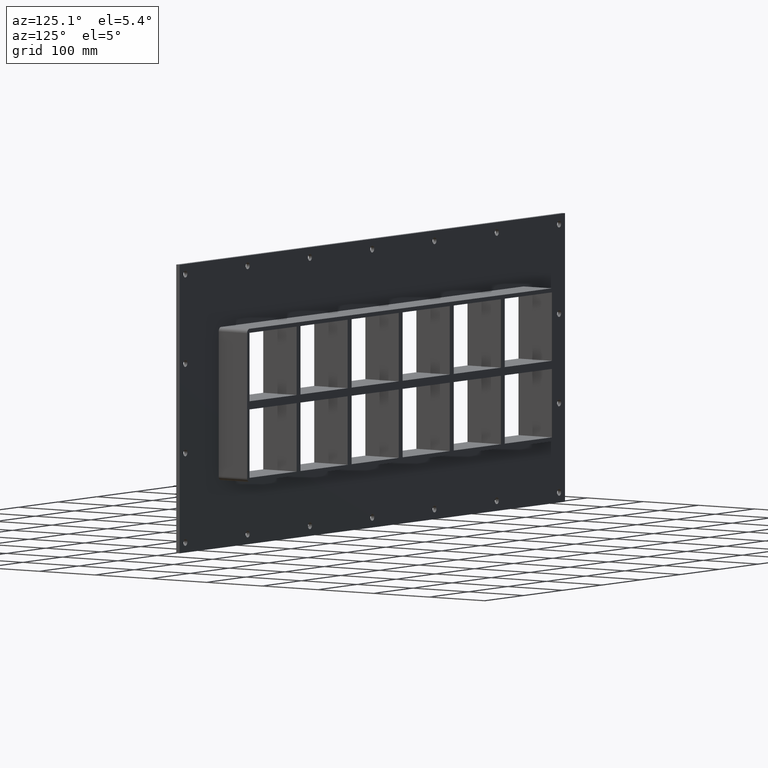
[diagram: clean part render]
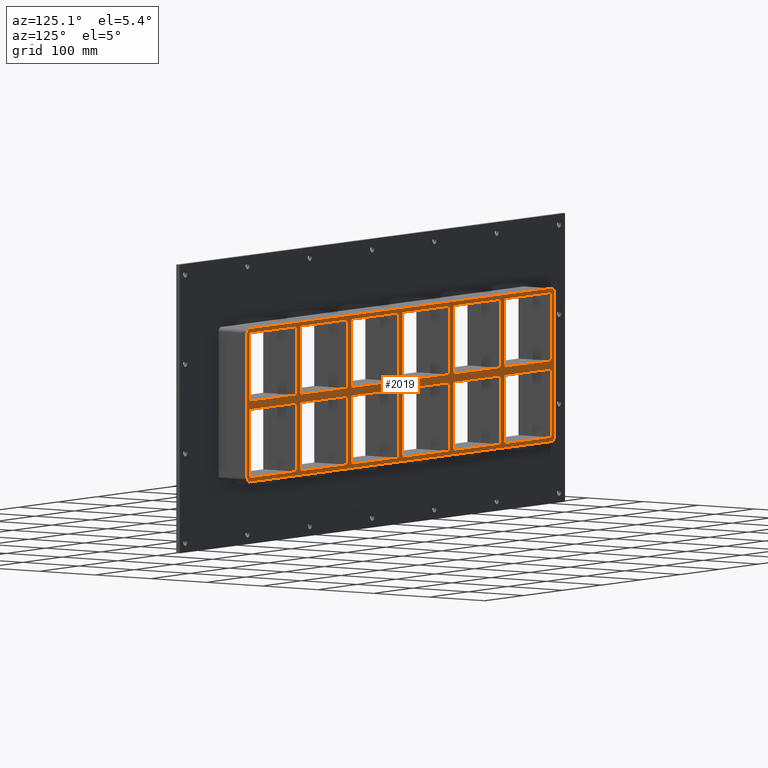
[diagram: same view with one face highlighted and labeled with its STEP entity id]
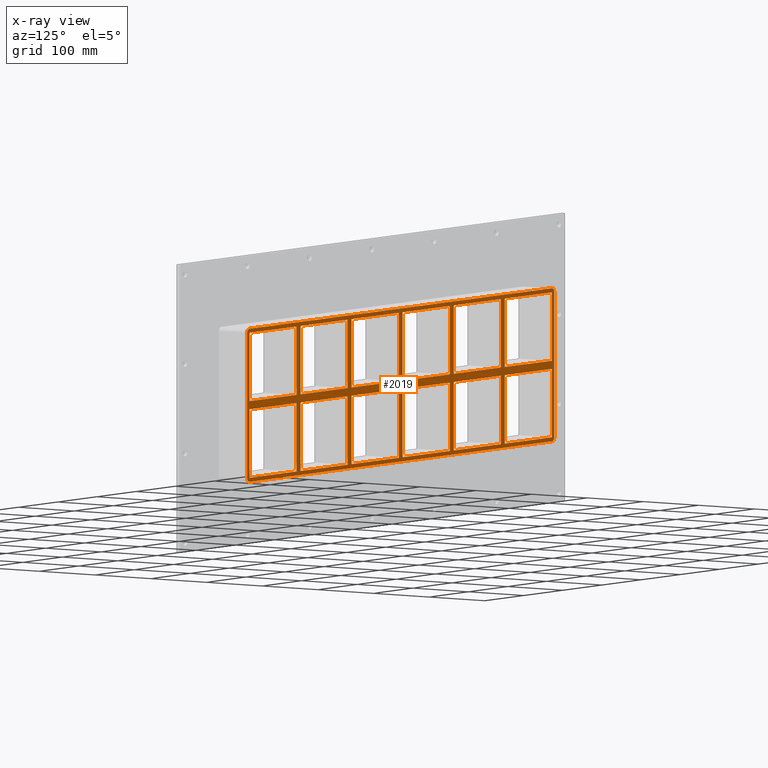
[diagram: x-ray of the same camera — body ghosted, the highlighted face saturated]
A machine part, auxiliary view. The second image highlights one B-rep face of the part: STEP entity #2019.
The next image is the same camera in x-ray: the body ghosted, the highlighted face saturated — about 0% of this face is hidden behind the body in this view.
In plain terms, the highlighted planar face has unit normal (0, 1, 0).
Its self-contained STEP definition (entity closure, byte-faithful):
#579=CARTESIAN_POINT('',(255.99999999999866,57.0,5.999999999999943));
#580=VERTEX_POINT('',#579);
#595=CARTESIAN_POINT('',(255.99999999999864,57.0,107.00000000000003));
#596=VERTEX_POINT('',#595);
#603=CARTESIAN_POINT('',(255.99999999999866,57.0,5.999999999999943));
#604=DIRECTION('',(0.0,0.0,1.0));
#605=VECTOR('',#604,101.00000000000009);
#606=LINE('',#603,#605);
#607=EDGE_CURVE('',#580,#596,#606,.T.);
#617=CARTESIAN_POINT('',(255.99999999999866,57.0,-6.000000000009376));
#618=VERTEX_POINT('',#617);
#627=CARTESIAN_POINT('',(255.99999999999869,57.0,-107.00000000000003));
#628=VERTEX_POINT('',#627);
#629=CARTESIAN_POINT('',(255.99999999999869,57.0,-107.00000000000003));
#630=DIRECTION('',(0.0,0.0,1.0));
#631=VECTOR('',#630,100.99999999999065);
#632=LINE('',#629,#631);
#633=EDGE_CURVE('',#628,#618,#632,.T.);
#657=CARTESIAN_POINT('',(265.99999999999642,57.0,5.999999999999943));
#658=VERTEX_POINT('',#657);
#667=CARTESIAN_POINT('',(265.99999999999642,57.0,107.00000000000003));
#668=VERTEX_POINT('',#667);
#669=CARTESIAN_POINT('',(265.99999999999642,57.0,107.00000000000003));
#670=DIRECTION('',(0.0,0.0,-1.0));
#671=VECTOR('',#670,101.00000000000009);
#672=LINE('',#669,#671);
#673=EDGE_CURVE('',#668,#658,#672,.T.);
#699=CARTESIAN_POINT('',(265.99999999999642,57.0,-6.000000000009358));
#700=VERTEX_POINT('',#699);
#715=CARTESIAN_POINT('',(265.99999999999642,57.0,-106.99999999998428));
#716=VERTEX_POINT('',#715);
#723=CARTESIAN_POINT('',(265.99999999999642,57.0,-6.000000000009351));
#724=DIRECTION('',(0.0,0.0,-1.0));
#725=VECTOR('',#724,100.99999999997493);
#726=LINE('',#723,#725);
#727=EDGE_CURVE('',#700,#716,#726,.T.);
#739=CARTESIAN_POINT('',(125.49999999999866,57.0,5.999999999999943));
#740=VERTEX_POINT('',#739);
#755=CARTESIAN_POINT('',(125.49999999999862,57.0,107.00000000000003));
#756=VERTEX_POINT('',#755);
#763=CARTESIAN_POINT('',(125.49999999999865,57.0,5.999999999999943));
#764=DIRECTION('',(0.0,0.0,1.0));
#765=VECTOR('',#764,101.00000000000009);
#766=LINE('',#763,#765);
#767=EDGE_CURVE('',#740,#756,#766,.T.);
#777=CARTESIAN_POINT('',(125.49999999999866,57.0,-6.000000000009411));
#778=VERTEX_POINT('',#777);
#787=CARTESIAN_POINT('',(125.49999999999869,57.0,-107.00000000000003));
#788=VERTEX_POINT('',#787);
#789=CARTESIAN_POINT('',(125.49999999999869,57.0,-107.00000000000003));
#790=DIRECTION('',(0.0,0.0,1.0));
#791=VECTOR('',#790,100.99999999999062);
#792=LINE('',#789,#791);
#793=EDGE_CURVE('',#788,#778,#792,.T.);
#817=CARTESIAN_POINT('',(135.49999999999642,57.0,5.999999999999943));
#818=VERTEX_POINT('',#817);
#827=CARTESIAN_POINT('',(135.49999999999642,57.0,107.00000000000003));
#828=VERTEX_POINT('',#827);
#829=CARTESIAN_POINT('',(135.49999999999642,57.0,107.00000000000003));
#830=DIRECTION('',(0.0,0.0,-1.0));
#831=VECTOR('',#830,101.00000000000009);
#832=LINE('',#829,#831);
#833=EDGE_CURVE('',#828,#818,#832,.T.);
#859=CARTESIAN_POINT('',(135.49999999999642,57.0,-6.000000000009411));
#860=VERTEX_POINT('',#859);
#875=CARTESIAN_POINT('',(135.49999999999642,57.0,-106.99999999998428));
#876=VERTEX_POINT('',#875);
#883=CARTESIAN_POINT('',(135.49999999999642,57.0,-6.000000000009408));
#884=DIRECTION('',(0.0,0.0,-1.0));
#885=VECTOR('',#884,100.99999999997488);
#886=LINE('',#883,#885);
#887=EDGE_CURVE('',#860,#876,#886,.T.);
#899=CARTESIAN_POINT('',(-5.000000000001387,57.0,5.999999999999943));
#900=VERTEX_POINT('',#899);
#915=CARTESIAN_POINT('',(-5.000000000001421,57.0,107.00000000000003));
#916=VERTEX_POINT('',#915);
#923=CARTESIAN_POINT('',(-5.000000000001387,57.0,5.999999999999943));
#924=DIRECTION('',(0.0,0.0,1.0));
#925=VECTOR('',#924,101.00000000000009);
#926=LINE('',#923,#925);
#927=EDGE_CURVE('',#900,#916,#926,.T.);
#937=CARTESIAN_POINT('',(-5.000000000001384,57.0,-6.000000000009464));
#938=VERTEX_POINT('',#937);
#947=CARTESIAN_POINT('',(-5.00000000000135,57.0,-107.00000000000003));
#948=VERTEX_POINT('',#947);
#949=CARTESIAN_POINT('',(-5.00000000000135,57.0,-107.00000000000003));
#950=DIRECTION('',(0.0,0.0,1.0));
#951=VECTOR('',#950,100.99999999999056);
#952=LINE('',#949,#951);
#953=EDGE_CURVE('',#948,#938,#952,.T.);
#977=CARTESIAN_POINT('',(4.999999999996376,57.0,5.999999999999943));
#978=VERTEX_POINT('',#977);
#987=CARTESIAN_POINT('',(4.999999999996376,57.0,107.00000000000003));
#988=VERTEX_POINT('',#987);
#989=CARTESIAN_POINT('',(4.999999999996376,57.0,107.00000000000003));
#990=DIRECTION('',(0.0,0.0,-1.0));
#991=VECTOR('',#990,101.00000000000009);
#992=LINE('',#989,#991);
#993=EDGE_CURVE('',#988,#978,#992,.T.);
#1019=CARTESIAN_POINT('',(4.999999999996376,57.0,-6.000000000009464));
#1020=VERTEX_POINT('',#1019);
#1035=CARTESIAN_POINT('',(4.999999999996376,57.0,-106.99999999998428));
#1036=VERTEX_POINT('',#1035);
#1043=CARTESIAN_POINT('',(4.999999999996376,57.0,-6.000000000009464));
#1044=DIRECTION('',(0.0,0.0,-1.0));
#1045=VECTOR('',#1044,100.99999999997482);
#1046=LINE('',#1043,#1045);
#1047=EDGE_CURVE('',#1020,#1036,#1046,.T.);
#1059=CARTESIAN_POINT('',(-135.50000000000139,57.0,5.999999999999943));
#1060=VERTEX_POINT('',#1059);
#1075=CARTESIAN_POINT('',(-135.50000000000142,57.0,107.00000000000003));
#1076=VERTEX_POINT('',#1075);
#1083=CARTESIAN_POINT('',(-135.50000000000139,57.0,5.999999999999943));
#1084=DIRECTION('',(0.0,0.0,1.0));
#1085=VECTOR('',#1084,101.00000000000009);
#1086=LINE('',#1083,#1085);
#1087=EDGE_CURVE('',#1060,#1076,#1086,.T.);
#1097=CARTESIAN_POINT('',(-135.50000000000139,57.0,-6.000000000009518));
#1098=VERTEX_POINT('',#1097);
#1107=CARTESIAN_POINT('',(-135.50000000000136,57.0,-107.00000000000003));
#1108=VERTEX_POINT('',#1107);
#1109=CARTESIAN_POINT('',(-135.50000000000136,57.0,-107.00000000000003));
#1110=DIRECTION('',(0.0,0.0,1.0));
#1111=VECTOR('',#1110,100.99999999999051);
#1112=LINE('',#1109,#1111);
#1113=EDGE_CURVE('',#1108,#1098,#1112,.T.);
#1137=CARTESIAN_POINT('',(-125.50000000000364,57.0,5.999999999999943));
#1138=VERTEX_POINT('',#1137);
#1147=CARTESIAN_POINT('',(-125.50000000000364,57.0,107.00000000000003));
#1148=VERTEX_POINT('',#1147);
#1149=CARTESIAN_POINT('',(-125.50000000000364,57.0,107.00000000000003));
#1150=DIRECTION('',(0.0,0.0,-1.0));
#1151=VECTOR('',#1150,101.00000000000009);
#1152=LINE('',#1149,#1151);
#1153=EDGE_CURVE('',#1148,#1138,#1152,.T.);
#1179=CARTESIAN_POINT('',(-125.50000000000364,57.0,-6.000000000009518));
#1180=VERTEX_POINT('',#1179);
#1195=CARTESIAN_POINT('',(-125.50000000000364,57.0,-106.99999999998428));
#1196=VERTEX_POINT('',#1195);
#1203=CARTESIAN_POINT('',(-125.50000000000364,57.0,-6.000000000009521));
#1204=DIRECTION('',(0.0,0.0,-1.0));
#1205=VECTOR('',#1204,100.99999999997476);
#1206=LINE('',#1203,#1205);
#1207=EDGE_CURVE('',#1180,#1196,#1206,.T.);
#1218=CARTESIAN_POINT('',(-256.00000000000364,57.0,-106.99999999998428));
#1219=VERTEX_POINT('',#1218);
#1220=CARTESIAN_POINT('',(-256.00000000000364,57.0,-107.00000000000003));
#1221=DIRECTION('',(1.0,0.0,0.0));
#1222=VECTOR('',#1221,120.50000000000227);
#1223=LINE('',#1220,#1222);
#1224=EDGE_CURVE('',#1219,#1108,#1223,.T.);
#1249=CARTESIAN_POINT('',(-125.50000000000364,57.0,-107.00000000000003));
#1250=DIRECTION('',(1.0,0.0,0.0));
#1251=VECTOR('',#1250,120.5000000000023);
#1252=LINE('',#1249,#1251);
#1253=EDGE_CURVE('',#1196,#948,#1252,.T.);
#1271=CARTESIAN_POINT('',(4.99999999999639,57.0,-107.00000000000003));
#1272=DIRECTION('',(1.0,0.0,0.0));
#1273=VECTOR('',#1272,120.5000000000023);
#1274=LINE('',#1271,#1273);
#1275=EDGE_CURVE('',#1036,#788,#1274,.T.);
#1293=CARTESIAN_POINT('',(135.49999999999642,57.0,-107.00000000000003));
#1294=DIRECTION('',(1.0,0.0,0.0));
#1295=VECTOR('',#1294,120.50000000000227);
#1296=LINE('',#1293,#1295);
#1297=EDGE_CURVE('',#876,#628,#1296,.T.);
#1323=CARTESIAN_POINT('',(386.50000000000006,57.0,-107.00000000000003));
#1324=VERTEX_POINT('',#1323);
#1331=CARTESIAN_POINT('',(265.99999999999642,57.0,-107.00000000000003));
#1332=DIRECTION('',(1.0,0.0,0.0));
#1333=VECTOR('',#1332,120.50000000000364);
#1334=LINE('',#1331,#1333);
#1335=EDGE_CURVE('',#716,#1324,#1334,.T.);
#1657=CARTESIAN_POINT('',(386.49999999999636,57.0,-6.000000000009322));
#1658=VERTEX_POINT('',#1657);
#1659=CARTESIAN_POINT('',(386.49999999999636,57.0,-6.000000000009322));
#1660=DIRECTION('',(-1.0,0.0,0.0));
#1661=VECTOR('',#1660,120.49999999999994);
#1662=LINE('',#1659,#1661);
#1663=EDGE_CURVE('',#1658,#700,#1662,.T.);
#1682=CARTESIAN_POINT('',(-256.00000000000364,57.0,-6.000000000009559));
#1683=VERTEX_POINT('',#1682);
#1690=CARTESIAN_POINT('',(-135.50000000000136,57.0,-6.000000000009514));
#1691=DIRECTION('',(-1.0,0.0,0.0));
#1692=VECTOR('',#1691,120.50000000000227);
#1693=LINE('',#1690,#1692);
#1694=EDGE_CURVE('',#1098,#1683,#1693,.T.);
#1707=CARTESIAN_POINT('',(-5.000000000001364,57.0,-6.000000000009466));
#1708=DIRECTION('',(-1.0,0.0,0.0));
#1709=VECTOR('',#1708,120.50000000000227);
#1710=LINE('',#1707,#1709);
#1711=EDGE_CURVE('',#938,#1180,#1710,.T.);
#1724=CARTESIAN_POINT('',(125.49999999999864,57.0,-6.000000000009418));
#1725=DIRECTION('',(-1.0,0.0,0.0));
#1726=VECTOR('',#1725,120.50000000000227);
#1727=LINE('',#1724,#1726);
#1728=EDGE_CURVE('',#778,#1020,#1727,.T.);
#1733=CARTESIAN_POINT('',(-6.975407E-014,57.0,0.0));
#1734=DIRECTION('',(0.0,1.0,0.0));
#1735=DIRECTION('',(0.0,0.0,1.0));
#1736=AXIS2_PLACEMENT_3D('',#1733,#1734,#1735);
#1737=PLANE('',#1736);
#1738=CARTESIAN_POINT('',(386.50000000000006,57.0,-113.0));
#1739=VERTEX_POINT('',#1738);
#1740=CARTESIAN_POINT('',(392.5,57.0,-107.0));
#1741=VERTEX_POINT('',#1740);
#1742=CARTESIAN_POINT('',(386.50000000000006,57.0,-107.0));
#1743=DIRECTION('',(0.0,-1.0,0.0));
#1744=DIRECTION('',(0.707106781186543,0.0,-0.707106781186552));
#1745=AXIS2_PLACEMENT_3D('',#1742,#1743,#1744);
#1746=CIRCLE('',#1745,6.000000000000001);
#1747=EDGE_CURVE('',#1739,#1741,#1746,.T.);
#1748=ORIENTED_EDGE('',*,*,#1747,.F.);
#1749=CARTESIAN_POINT('',(-386.50000000000006,57.0,-113.0));
#1750=VERTEX_POINT('',#1749);
#1751=CARTESIAN_POINT('',(386.50000000000006,57.0,-113.0));
#1752=DIRECTION('',(-1.0,0.0,0.0));
#1753=VECTOR('',#1752,773.0);
#1754=LINE('',#1751,#1753);
#1755=EDGE_CURVE('',#1739,#1750,#1754,.T.);
#1756=ORIENTED_EDGE('',*,*,#1755,.T.);
#1757=CARTESIAN_POINT('',(-392.50000000000011,57.0,-107.0));
#1758=VERTEX_POINT('',#1757);
#1759=CARTESIAN_POINT('',(-386.50000000000006,57.0,-107.0));
#1760=DIRECTION('',(0.0,-1.0,0.0));
#1761=DIRECTION('',(-0.707106781186552,0.0,-0.707106781186543));
#1762=AXIS2_PLACEMENT_3D('',#1759,#1760,#1761);
#1763=CIRCLE('',#1762,6.0);
#1764=EDGE_CURVE('',#1758,#1750,#1763,.T.);
#1765=ORIENTED_EDGE('',*,*,#1764,.F.);
#1766=CARTESIAN_POINT('',(-392.50000000000011,57.0,107.0));
#1767=VERTEX_POINT('',#1766);
#1768=CARTESIAN_POINT('',(-392.50000000000011,57.0,-106.99999999999999));
#1769=DIRECTION('',(0.0,0.0,1.0));
#1770=VECTOR('',#1769,214.0);
#1771=LINE('',#1768,#1770);
#1772=EDGE_CURVE('',#1758,#1767,#1771,.T.);
#1773=ORIENTED_EDGE('',*,*,#1772,.T.);
#1774=CARTESIAN_POINT('',(-386.50000000000023,57.0,113.0));
#1775=VERTEX_POINT('',#1774);
#1776=CARTESIAN_POINT('',(-386.50000000000023,57.0,107.0));
#1777=DIRECTION('',(0.0,-1.0,0.0));
#1778=DIRECTION('',(-0.707106781186543,0.0,0.707106781186552));
#1779=AXIS2_PLACEMENT_3D('',#1776,#1777,#1778);
#1780=CIRCLE('',#1779,6.000000000000001);
#1781=EDGE_CURVE('',#1775,#1767,#1780,.T.);
#1782=ORIENTED_EDGE('',*,*,#1781,.F.);
#1783=CARTESIAN_POINT('',(386.49999999999989,57.0,113.0));
#1784=VERTEX_POINT('',#1783);
#1785=CARTESIAN_POINT('',(-386.50000000000017,57.0,113.0));
#1786=DIRECTION('',(1.0,0.0,0.0));
#1787=VECTOR('',#1786,773.0);
#1788=LINE('',#1785,#1787);
#1789=EDGE_CURVE('',#1775,#1784,#1788,.T.);
#1790=ORIENTED_EDGE('',*,*,#1789,.T.);
#1791=CARTESIAN_POINT('',(392.5,57.0,107.00000000000001));
#1792=VERTEX_POINT('',#1791);
#1793=CARTESIAN_POINT('',(386.49999999999989,57.0,107.00000000000001));
#1794=DIRECTION('',(0.0,-1.0,0.0));
#1795=DIRECTION('',(0.707106781186554,0.0,0.707106781186541));
#1796=AXIS2_PLACEMENT_3D('',#1793,#1794,#1795);
#1797=CIRCLE('',#1796,6.0);
#1798=EDGE_CURVE('',#1792,#1784,#1797,.T.);
#1799=ORIENTED_EDGE('',*,*,#1798,.F.);
#1800=CARTESIAN_POINT('',(392.5,57.0,107.0));
#1801=DIRECTION('',(0.0,0.0,-1.0));
#1802=VECTOR('',#1801,214.0);
#1803=LINE('',#1800,#1802);
#1804=EDGE_CURVE('',#1792,#1741,#1803,.T.);
#1805=ORIENTED_EDGE('',*,*,#1804,.T.);
#1806=EDGE_LOOP('',(#1748,#1756,#1765,#1773,#1782,#1790,#1799,#1805));
#1807=FACE_OUTER_BOUND('',#1806,.T.);
#1808=ORIENTED_EDGE('',*,*,#1335,.T.);
#1809=CARTESIAN_POINT('',(386.50000000000006,57.0,-107.00000000000004));
#1810=DIRECTION('',(0.0,0.0,1.0));
#1811=VECTOR('',#1810,100.99999999999072);
#1812=LINE('',#1809,#1811);
#1813=EDGE_CURVE('',#1324,#1658,#1812,.T.);
#1814=ORIENTED_EDGE('',*,*,#1813,.T.);
#1815=ORIENTED_EDGE('',*,*,#1663,.T.);
#1816=ORIENTED_EDGE('',*,*,#727,.T.);
#1817=EDGE_LOOP('',(#1808,#1814,#1815,#1816));
#1818=FACE_BOUND('',#1817,.T.);
#1819=CARTESIAN_POINT('',(386.50000000000006,57.0,5.999999999999943));
#1820=VERTEX_POINT('',#1819);
#1821=CARTESIAN_POINT('',(265.99999999999636,57.0,5.999999999999943));
#1822=DIRECTION('',(1.0,0.0,0.0));
#1823=VECTOR('',#1822,120.50000000000364);
#1824=LINE('',#1821,#1823);
#1825=EDGE_CURVE('',#658,#1820,#1824,.T.);
#1826=ORIENTED_EDGE('',*,*,#1825,.T.);
#1827=CARTESIAN_POINT('',(386.50000000000006,57.0,107.00000000000003));
#1828=VERTEX_POINT('',#1827);
#1829=CARTESIAN_POINT('',(386.50000000000006,57.0,5.999999999999943));
#1830=DIRECTION('',(0.0,0.0,1.0));
#1831=VECTOR('',#1830,101.00000000000009);
#1832=LINE('',#1829,#1831);
#1833=EDGE_CURVE('',#1820,#1828,#1832,.T.);
#1834=ORIENTED_EDGE('',*,*,#1833,.T.);
#1835=CARTESIAN_POINT('',(386.50000000000006,57.0,107.00000000000003));
#1836=DIRECTION('',(-1.0,0.0,0.0));
#1837=VECTOR('',#1836,120.50000000000364);
#1838=LINE('',#1835,#1837);
#1839=EDGE_CURVE('',#1828,#668,#1838,.T.);
#1840=ORIENTED_EDGE('',*,*,#1839,.T.);
#1841=ORIENTED_EDGE('',*,*,#673,.T.);
#1842=EDGE_LOOP('',(#1826,#1834,#1840,#1841));
#1843=FACE_BOUND('',#1842,.T.);
#1844=ORIENTED_EDGE('',*,*,#633,.T.);
#1845=CARTESIAN_POINT('',(255.99999999999866,57.0,-6.00000000000937));
#1846=DIRECTION('',(-1.0,0.0,0.0));
#1847=VECTOR('',#1846,120.50000000000225);
#1848=LINE('',#1845,#1847);
#1849=EDGE_CURVE('',#618,#860,#1848,.T.);
#1850=ORIENTED_EDGE('',*,*,#1849,.T.);
#1851=ORIENTED_EDGE('',*,*,#887,.T.);
#1852=ORIENTED_EDGE('',*,*,#1297,.T.);
#1853=EDGE_LOOP('',(#1844,#1850,#1851,#1852));
#1854=FACE_BOUND('',#1853,.T.);
#1855=ORIENTED_EDGE('',*,*,#607,.T.);
#1856=CARTESIAN_POINT('',(255.99999999999864,57.0,107.00000000000003));
#1857=DIRECTION('',(-1.0,0.0,0.0));
#1858=VECTOR('',#1857,120.50000000000222);
#1859=LINE('',#1856,#1858);
#1860=EDGE_CURVE('',#596,#828,#1859,.T.);
#1861=ORIENTED_EDGE('',*,*,#1860,.T.);
#1862=ORIENTED_EDGE('',*,*,#833,.T.);
#1863=CARTESIAN_POINT('',(135.49999999999636,57.0,5.999999999999943));
#1864=DIRECTION('',(1.0,0.0,0.0));
#1865=VECTOR('',#1864,120.50000000000227);
#1866=LINE('',#1863,#1865);
#1867=EDGE_CURVE('',#818,#580,#1866,.T.);
#1868=ORIENTED_EDGE('',*,*,#1867,.T.);
#1869=EDGE_LOOP('',(#1855,#1861,#1862,#1868));
#1870=FACE_BOUND('',#1869,.T.);
#1871=ORIENTED_EDGE('',*,*,#793,.T.);
#1872=ORIENTED_EDGE('',*,*,#1728,.T.);
#1873=ORIENTED_EDGE('',*,*,#1047,.T.);
#1874=ORIENTED_EDGE('',*,*,#1275,.T.);
#1875=EDGE_LOOP('',(#1871,#1872,#1873,#1874));
#1876=FACE_BOUND('',#1875,.T.);
#1877=ORIENTED_EDGE('',*,*,#767,.T.);
#1878=CARTESIAN_POINT('',(125.49999999999864,57.0,107.00000000000003));
#1879=DIRECTION('',(-1.0,0.0,0.0));
#1880=VECTOR('',#1879,120.50000000000225);
#1881=LINE('',#1878,#1880);
#1882=EDGE_CURVE('',#756,#988,#1881,.T.);
#1883=ORIENTED_EDGE('',*,*,#1882,.T.);
#1884=ORIENTED_EDGE('',*,*,#993,.T.);
#1885=CARTESIAN_POINT('',(4.999999999996362,57.0,5.999999999999943));
#1886=DIRECTION('',(1.0,0.0,0.0));
#1887=VECTOR('',#1886,120.50000000000233);
#1888=LINE('',#1885,#1887);
#1889=EDGE_CURVE('',#978,#740,#1888,.T.);
#1890=ORIENTED_EDGE('',*,*,#1889,.T.);
#1891=EDGE_LOOP('',(#1877,#1883,#1884,#1890));
#1892=FACE_BOUND('',#1891,.T.);
#1893=ORIENTED_EDGE('',*,*,#953,.T.);
#1894=ORIENTED_EDGE('',*,*,#1711,.T.);
#1895=ORIENTED_EDGE('',*,*,#1207,.T.);
#1896=ORIENTED_EDGE('',*,*,#1253,.T.);
#1897=EDGE_LOOP('',(#1893,#1894,#1895,#1896));
#1898=FACE_BOUND('',#1897,.T.);
#1899=ORIENTED_EDGE('',*,*,#927,.T.);
#1900=CARTESIAN_POINT('',(-5.000000000001421,57.0,107.00000000000003));
#1901=DIRECTION('',(-1.0,0.0,0.0));
#1902=VECTOR('',#1901,120.5000000000022);
#1903=LINE('',#1900,#1902);
#1904=EDGE_CURVE('',#916,#1148,#1903,.T.);
#1905=ORIENTED_EDGE('',*,*,#1904,.T.);
#1906=ORIENTED_EDGE('',*,*,#1153,.T.);
#1907=CARTESIAN_POINT('',(-125.50000000000364,57.0,5.999999999999943));
#1908=DIRECTION('',(1.0,0.0,0.0));
#1909=VECTOR('',#1908,120.50000000000222);
#1910=LINE('',#1907,#1909);
#1911=EDGE_CURVE('',#1138,#900,#1910,.T.);
#1912=ORIENTED_EDGE('',*,*,#1911,.T.);
#1913=EDGE_LOOP('',(#1899,#1905,#1906,#1912));
#1914=FACE_BOUND('',#1913,.T.);
#1915=ORIENTED_EDGE('',*,*,#1113,.T.);
#1916=ORIENTED_EDGE('',*,*,#1694,.T.);
#1917=CARTESIAN_POINT('',(-256.00000000000364,57.0,-6.00000000000955));
#1918=DIRECTION('',(0.0,0.0,-1.0));
#1919=VECTOR('',#1918,100.99999999997473);
#1920=LINE('',#1917,#1919);
#1921=EDGE_CURVE('',#1683,#1219,#1920,.T.);
#1922=ORIENTED_EDGE('',*,*,#1921,.T.);
#1923=ORIENTED_EDGE('',*,*,#1224,.T.);
#1924=EDGE_LOOP('',(#1915,#1916,#1922,#1923));
#1925=FACE_BOUND('',#1924,.T.);
#1926=CARTESIAN_POINT('',(-386.49999999999977,57.0,5.999999999999943));
#1927=VERTEX_POINT('',#1926);
#1928=CARTESIAN_POINT('',(-266.00000000000142,57.0,5.999999999999943));
#1929=VERTEX_POINT('',#1928);
#1930=CARTESIAN_POINT('',(-386.49999999999977,57.0,5.999999999999943));
#1931=DIRECTION('',(1.0,0.0,0.0));
#1932=VECTOR('',#1931,120.49999999999841);
#1933=LINE('',#1930,#1932);
#1934=EDGE_CURVE('',#1927,#1929,#1933,.T.);
#1935=ORIENTED_EDGE('',*,*,#1934,.T.);
#1936=CARTESIAN_POINT('',(-266.00000000000142,57.0,107.00000000000003));
#1937=VERTEX_POINT('',#1936);
#1938=CARTESIAN_POINT('',(-266.00000000000142,57.0,5.999999999999943));
#1939=DIRECTION('',(0.0,0.0,1.0));
#1940=VECTOR('',#1939,101.00000000000009);
#1941=LINE('',#1938,#1940);
#1942=EDGE_CURVE('',#1929,#1937,#1941,.T.);
#1943=ORIENTED_EDGE('',*,*,#1942,.T.);
#1944=CARTESIAN_POINT('',(-386.50000000000006,57.0,107.00000000000003));
#1945=VERTEX_POINT('',#1944);
#1946=CARTESIAN_POINT('',(-266.00000000000142,57.0,107.00000000000003));
#1947=DIRECTION('',(-1.0,0.0,0.0));
#1948=VECTOR('',#1947,120.49999999999864);
#1949=LINE('',#1946,#1948);
#1950=EDGE_CURVE('',#1937,#1945,#1949,.T.);
#1951=ORIENTED_EDGE('',*,*,#1950,.T.);
#1952=CARTESIAN_POINT('',(-386.50000000000006,57.0,107.00000000000004));
#1953=DIRECTION('',(0.0,0.0,-1.0));
#1954=VECTOR('',#1953,101.0000000000001);
#1955=LINE('',#1952,#1954);
#1956=EDGE_CURVE('',#1945,#1927,#1955,.T.);
#1957=ORIENTED_EDGE('',*,*,#1956,.T.);
#1958=EDGE_LOOP('',(#1935,#1943,#1951,#1957));
#1959=FACE_BOUND('',#1958,.T.);
#1960=CARTESIAN_POINT('',(-386.49999999999977,57.0,-6.000000000009607));
#1961=VERTEX_POINT('',#1960);
#1962=CARTESIAN_POINT('',(-386.50000000000006,57.0,-107.00000000000003));
#1963=VERTEX_POINT('',#1962);
#1964=CARTESIAN_POINT('',(-386.50000000000006,57.0,-6.000000000009607));
#1965=DIRECTION('',(0.0,0.0,-1.0));
#1966=VECTOR('',#1965,100.99999999999042);
#1967=LINE('',#1964,#1966);
#1968=EDGE_CURVE('',#1961,#1963,#1967,.T.);
#1969=ORIENTED_EDGE('',*,*,#1968,.T.);
#1970=CARTESIAN_POINT('',(-266.00000000000136,57.0,-107.00000000000003));
#1971=VERTEX_POINT('',#1970);
#1972=CARTESIAN_POINT('',(-386.50000000000011,57.0,-107.00000000000003));
#1973=DIRECTION('',(1.0,0.0,0.0));
#1974=VECTOR('',#1973,120.49999999999875);
#1975=LINE('',#1972,#1974);
#1976=EDGE_CURVE('',#1963,#1971,#1975,.T.);
#1977=ORIENTED_EDGE('',*,*,#1976,.T.);
#1978=CARTESIAN_POINT('',(-266.00000000000136,57.0,-6.000000000009562));
#1979=VERTEX_POINT('',#1978);
#1980=CARTESIAN_POINT('',(-266.00000000000136,57.0,-107.00000000000003));
#1981=DIRECTION('',(0.0,0.0,1.0));
#1982=VECTOR('',#1981,100.99999999999045);
#1983=LINE('',#1980,#1982);
#1984=EDGE_CURVE('',#1971,#1979,#1983,.T.);
#1985=ORIENTED_EDGE('',*,*,#1984,.T.);
#1986=CARTESIAN_POINT('',(-266.00000000000136,57.0,-6.000000000009562));
#1987=DIRECTION('',(-1.0,0.0,0.0));
#1988=VECTOR('',#1987,120.49999999999841);
#1989=LINE('',#1986,#1988);
#1990=EDGE_CURVE('',#1979,#1961,#1989,.T.);
#1991=ORIENTED_EDGE('',*,*,#1990,.T.);
#1992=EDGE_LOOP('',(#1969,#1977,#1985,#1991));
#1993=FACE_BOUND('',#1992,.T.);
#1994=ORIENTED_EDGE('',*,*,#1087,.T.);
#1995=CARTESIAN_POINT('',(-256.00000000000364,57.0,107.00000000000003));
#1996=VERTEX_POINT('',#1995);
#1997=CARTESIAN_POINT('',(-135.50000000000142,57.0,107.00000000000003));
#1998=DIRECTION('',(-1.0,0.0,0.0));
#1999=VECTOR('',#1998,120.50000000000222);
#2000=LINE('',#1997,#1999);
#2001=EDGE_CURVE('',#1076,#1996,#2000,.T.);
#2002=ORIENTED_EDGE('',*,*,#2001,.T.);
#2003=CARTESIAN_POINT('',(-256.00000000000364,57.0,5.999999999999943));
#2004=VERTEX_POINT('',#2003);
#2005=CARTESIAN_POINT('',(-256.00000000000364,57.0,107.00000000000003));
#2006=DIRECTION('',(0.0,0.0,-1.0));
#2007=VECTOR('',#2006,101.00000000000009);
#2008=LINE('',#2005,#2007);
#2009=EDGE_CURVE('',#1996,#2004,#2008,.T.);
#2010=ORIENTED_EDGE('',*,*,#2009,.T.);
#2011=CARTESIAN_POINT('',(-256.00000000000364,57.0,5.999999999999943));
#2012=DIRECTION('',(1.0,0.0,0.0));
#2013=VECTOR('',#2012,120.50000000000225);
#2014=LINE('',#2011,#2013);
#2015=EDGE_CURVE('',#2004,#1060,#2014,.T.);
#2016=ORIENTED_EDGE('',*,*,#2015,.T.);
#2017=EDGE_LOOP('',(#1994,#2002,#2010,#2016));
#2018=FACE_BOUND('',#2017,.T.);
#2019=ADVANCED_FACE('',(#1807,#1818,#1843,#1854,#1870,#1876,#1892,#1898,#1914,#1925,#1959,#1993,#2018),#1737,.T.);